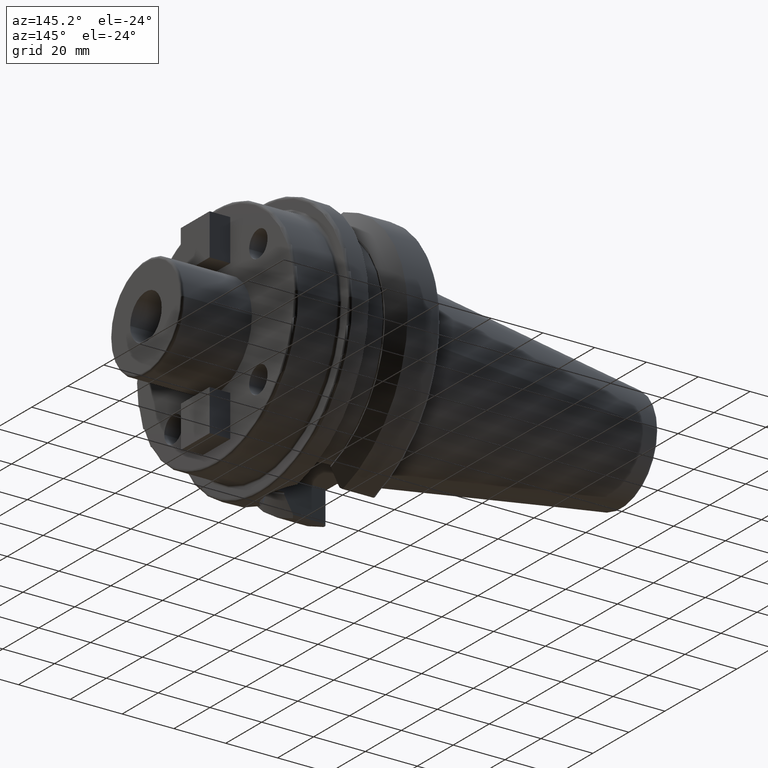
[diagram: clean part render]
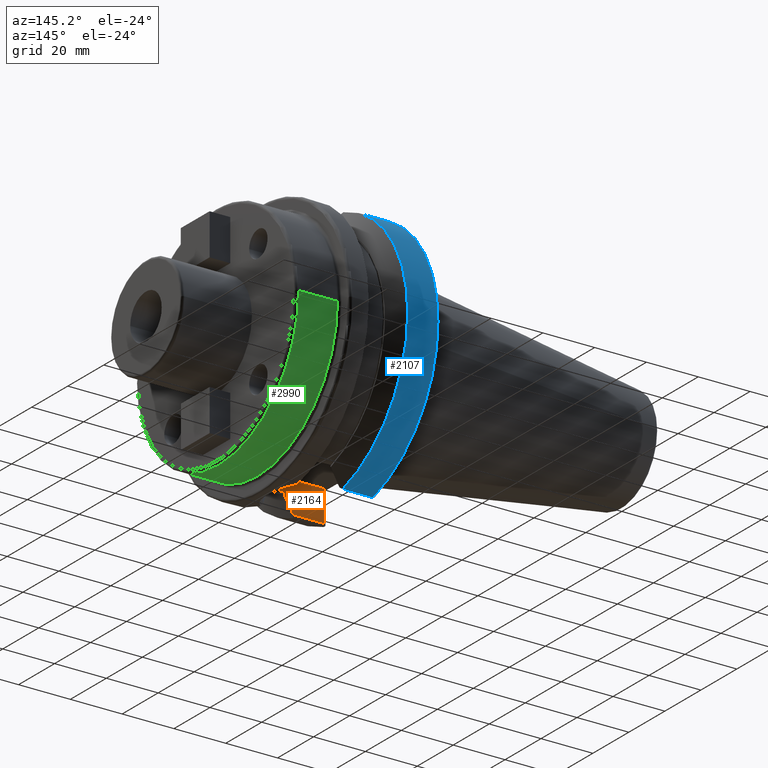
[diagram: same view with three faces highlighted in distinct colors, each labeled with its STEP entity id]
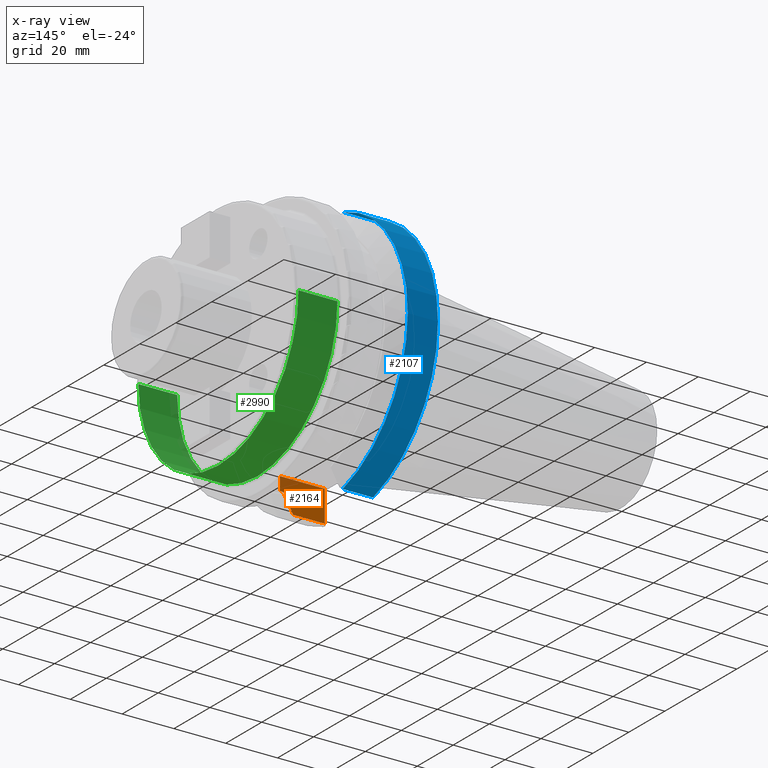
[diagram: x-ray of the same camera — body ghosted, the three highlighted faces saturated]
A machine part, auxiliary view with three faces highlighted in distinct colors.
The next image is the same camera in x-ray (body ghosted, the three faces saturated) — at least one of them is partly hidden behind the body in this view.
Their STEP definitions:

[orange] entity #2164 — the highlighted planar face has unit normal (0, -1, 0).
#295=DIRECTION('',(0.E0,0.E0,-1.E0));
#296=VECTOR('',#295,4.678451531613E-1);
#297=CARTESIAN_POINT('',(1.96625E1,-1.29025E1,-4.062531376802E1));
#298=LINE('',#297,#296);
#299=CARTESIAN_POINT('',(1.99125E1,-1.29025E1,-4.036293000700E1));
#300=CARTESIAN_POINT('',(1.988482223968E1,-1.29025E1,-4.036293000700E1));
#301=CARTESIAN_POINT('',(1.983275140013E1,-1.29025E1,-4.037231907874E1));
#302=CARTESIAN_POINT('',(1.976358989115E1,-1.29025E1,-4.040921074747E1));
#303=CARTESIAN_POINT('',(1.970597803203E1,-1.29025E1,-4.046933362101E1));
#304=CARTESIAN_POINT('',(1.967010312706E1,-1.29025E1,-4.054571527488E1));
#305=CARTESIAN_POINT('',(1.96625E1,-1.29025E1,-4.059802443585E1));
#306=CARTESIAN_POINT('',(1.96625E1,-1.29025E1,-4.062531376802E1));
#308=DIRECTION('',(1.E0,0.E0,0.E0));
#309=VECTOR('',#308,1.435E0);
#310=CARTESIAN_POINT('',(1.99125E1,-1.29025E1,-4.036293000700E1));
#311=LINE('',#310,#309);
#312=DIRECTION('',(-5.129281470936E-7,5.122293284830E-7,-9.999999999997E-1));
#313=VECTOR('',#312,1.177331056675E1);
#314=CARTESIAN_POINT('',(4.E0,-1.29025E1,-3.52E1));
#315=LINE('',#314,#313);
#316=CARTESIAN_POINT('',(3.999993961138E0,-1.290249396937E1,-4.697331056674E1));
#317=CARTESIAN_POINT('',(3.981975961438E0,-1.290249396937E1,-4.697876868360E1));
#318=CARTESIAN_POINT('',(3.948689573130E0,-1.290250279942E1,-4.699509717081E1));
#319=CARTESIAN_POINT('',(3.903730030628E0,-1.290249924798E1,-4.704031753072E1));
#320=CARTESIAN_POINT('',(3.875687876660E0,-1.290250020864E1,-4.709955792880E1));
#321=CARTESIAN_POINT('',(3.868340134922E0,-1.290249991745E1,-4.716386491502E1));
#322=CARTESIAN_POINT('',(3.882132130738E0,-1.290250012158E1,-4.722328575491E1));
#323=CARTESIAN_POINT('',(3.913011146217E0,-1.290249959625E1,-4.726973353600E1));
#324=CARTESIAN_POINT('',(3.955328137349E0,-1.290250149344E1,-4.729813597703E1));
#325=CARTESIAN_POINT('',(3.984570609571E0,-1.290249678449E1,-4.730395410478E1));
#326=CARTESIAN_POINT('',(3.999999988296E0,-1.290249678449E1,-4.730399634611E1));
#328=DIRECTION('',(9.999999999999E-1,-2.631146682253E-7,3.498135127772E-7));
#329=VECTOR('',#328,1.222095964835E1);
#330=CARTESIAN_POINT('',(3.999999988296E0,-1.290249678449E1,-4.730399634611E1));
#331=LINE('',#330,#329);
#332=CARTESIAN_POINT('',(1.96625E1,-1.29025E1,-4.109315892118E1));
#333=CARTESIAN_POINT('',(1.930371923002E1,-1.29025E1,-4.174449707739E1));
#334=CARTESIAN_POINT('',(1.857040869022E1,-1.29025E1,-4.307298282769E1));
#335=CARTESIAN_POINT('',(1.742403081668E1,-1.29025E1,-4.514175024416E1));
#336=CARTESIAN_POINT('',(1.662730270625E1,-1.29025E1,-4.657447448688E1));
#337=CARTESIAN_POINT('',(1.622095963665E1,-1.29025E1,-4.730399207105E1));
#435=DIRECTION('',(0.E0,0.E0,-1.E0));
#436=VECTOR('',#435,5.162930007E0);
#437=CARTESIAN_POINT('',(2.13475E1,-1.29025E1,-3.52E1));
#438=LINE('',#437,#436);
#749=DIRECTION('',(1.E0,0.E0,0.E0));
#750=VECTOR('',#749,1.73475E1);
#751=CARTESIAN_POINT('',(4.E0,-1.29025E1,-3.52E1));
#752=LINE('',#751,#750);
#1454=CARTESIAN_POINT('',(1.96625E1,-1.29025E1,-4.062531376802E1));
#1456=VERTEX_POINT('',#1454);
#1462=CARTESIAN_POINT('',(1.99125E1,-1.29025E1,-4.036293000700E1));
#1464=VERTEX_POINT('',#1462);
#1499=CARTESIAN_POINT('',(1.96625E1,-1.29025E1,-4.109315892118E1));
#1501=VERTEX_POINT('',#1499);
#1592=CARTESIAN_POINT('',(2.13475E1,-1.29025E1,-3.52E1));
#1594=VERTEX_POINT('',#1592);
#1611=CARTESIAN_POINT('',(2.13475E1,-1.29025E1,-4.036293000700E1));
#1612=VERTEX_POINT('',#1611);
#1613=VERTEX_POINT('',#337);
#1657=CARTESIAN_POINT('',(4.E0,-1.29025E1,-3.52E1));
#1658=CARTESIAN_POINT('',(3.999993961138E0,-1.290249396937E1,
-4.697331056674E1));
#1659=VERTEX_POINT('',#1657);
#1660=VERTEX_POINT('',#1658);
#1663=CARTESIAN_POINT('',(3.999999988296E0,-1.290249678449E1,
-4.730399634611E1));
#1664=VERTEX_POINT('',#1663);
#2142=CARTESIAN_POINT('',(2.5E0,-1.29025E1,-3.52E1));
#2143=DIRECTION('',(0.E0,-1.E0,0.E0));
#2144=DIRECTION('',(1.E0,0.E0,0.E0));
#2145=AXIS2_PLACEMENT_3D('',#2142,#2143,#2144);
#2146=PLANE('',#2145);
#2147=ORIENTED_EDGE('',*,*,#2036,.F.);
#2149=ORIENTED_EDGE('',*,*,#2148,.F.);
#2151=ORIENTED_EDGE('',*,*,#2150,.T.);
#2153=ORIENTED_EDGE('',*,*,#2152,.F.);
#2155=ORIENTED_EDGE('',*,*,#2154,.F.);
#2157=ORIENTED_EDGE('',*,*,#2156,.T.);
#2159=ORIENTED_EDGE('',*,*,#2158,.T.);
#2160=ORIENTED_EDGE('',*,*,#2134,.T.);
#2161=ORIENTED_EDGE('',*,*,#2065,.F.);
#2162=EDGE_LOOP('',(#2147,#2149,#2151,#2153,#2155,#2157,#2159,#2160,#2161));
#2163=FACE_OUTER_BOUND('',#2162,.F.);
#2164=ADVANCED_FACE('',(#2163),#2146,.F.);
#307=B_SPLINE_CURVE_WITH_KNOTS('',3,(#299,#300,#301,#302,#303,#304,#305,#306),
.UNSPECIFIED.,.F.,.F.,(4,1,1,1,1,4),(0.E0,2.E-1,4.E-1,6.E-1,8.E-1,1.E0),
.UNSPECIFIED.);
#327=B_SPLINE_CURVE_WITH_KNOTS('',3,(#316,#317,#318,#319,#320,#321,#322,#323,
#324,#325,#326),.UNSPECIFIED.,.F.,.F.,(4,1,1,1,1,1,1,1,4),(0.E0,1.25E-1,2.5E-1,
3.75E-1,5.E-1,6.25E-1,7.5E-1,8.75E-1,1.E0),.UNSPECIFIED.);
#338=B_SPLINE_CURVE_WITH_KNOTS('',3,(#332,#333,#334,#335,#336,#337),
.UNSPECIFIED.,.F.,.F.,(4,1,1,4),(0.E0,3.333333333333E-1,6.666666666667E-1,1.E0),
.UNSPECIFIED.);
#2036=EDGE_CURVE('',#1456,#1501,#298,.T.);
#2065=EDGE_CURVE('',#1501,#1613,#338,.T.);
#2134=EDGE_CURVE('',#1664,#1613,#331,.T.);
#2148=EDGE_CURVE('',#1464,#1456,#307,.T.);
#2150=EDGE_CURVE('',#1464,#1612,#311,.T.);
#2152=EDGE_CURVE('',#1594,#1612,#438,.T.);
#2154=EDGE_CURVE('',#1659,#1594,#752,.T.);
#2156=EDGE_CURVE('',#1659,#1660,#315,.T.);
#2158=EDGE_CURVE('',#1660,#1664,#327,.T.);

[blue] entity #2107 — the highlighted cylindrical surface (partial cylindrical patch) has radius 49.9875 mm, axis along (1, 0, 0).
#227=CARTESIAN_POINT('',(4.E0,0.E0,0.E0));
#228=DIRECTION('',(-1.E0,0.E0,0.E0));
#229=DIRECTION('',(0.E0,2.837968869610E-1,9.588844179312E-1));
#230=AXIS2_PLACEMENT_3D('',#227,#228,#229);
#232=DIRECTION('',(-1.E0,-7.302338022926E-8,-9.708531933347E-8));
#233=VECTOR('',#232,1.166933176412E1);
#234=CARTESIAN_POINT('',(1.566933176383E1,1.386327333875E1,-4.802665727057E1));
#235=LINE('',#234,#233);
#236=CARTESIAN_POINT('',(1.566933176383E1,0.E0,0.E0));
#237=DIRECTION('',(1.E0,0.E0,0.E0));
#238=DIRECTION('',(0.E0,2.773348004750E-1,-9.607733387462E-1));
#239=AXIS2_PLACEMENT_3D('',#236,#237,#238);
#241=DIRECTION('',(9.999999999989E-1,8.887251737038E-7,-1.189757232592E-6));
#242=VECTOR('',#241,1.166933177277E1);
#243=CARTESIAN_POINT('',(3.999999991073E0,1.418628651613E1,4.793224872501E1));
#244=LINE('',#243,#242);
#571=CARTESIAN_POINT('',(3.999999999701E0,1.386327248661E1,-4.802665840350E1));
#1620=CARTESIAN_POINT('',(1.566933176383E1,1.386327333875E1,-4.802665727057E1));
#1621=CARTESIAN_POINT('',(1.566933176383E1,1.418629688696E1,4.793223484134E1));
#1622=VERTEX_POINT('',#1620);
#1623=VERTEX_POINT('',#1621);
#1635=CARTESIAN_POINT('',(4.E0,1.418631682991E1,4.793222893890E1));
#1637=VERTEX_POINT('',#1635);
#1652=VERTEX_POINT('',#571);
#2093=CARTESIAN_POINT('',(-1.0879E2,0.E0,0.E0));
#2094=DIRECTION('',(1.E0,0.E0,0.E0));
#2095=DIRECTION('',(0.E0,-1.E0,0.E0));
#2096=AXIS2_PLACEMENT_3D('',#2093,#2094,#2095);
#2097=CYLINDRICAL_SURFACE('',#2096,4.99875E1);
#2099=ORIENTED_EDGE('',*,*,#2098,.T.);
#2101=ORIENTED_EDGE('',*,*,#2100,.F.);
#2102=ORIENTED_EDGE('',*,*,#2046,.T.);
#2104=ORIENTED_EDGE('',*,*,#2103,.F.);
#2105=EDGE_LOOP('',(#2099,#2101,#2102,#2104));
#2106=FACE_OUTER_BOUND('',#2105,.F.);
#2107=ADVANCED_FACE('',(#2106),#2097,.T.);
#231=CIRCLE('',#230,4.99875E1);
#240=CIRCLE('',#239,4.99875E1);
#2046=EDGE_CURVE('',#1622,#1623,#240,.T.);
#2098=EDGE_CURVE('',#1637,#1652,#231,.T.);
#2100=EDGE_CURVE('',#1622,#1652,#235,.T.);
#2103=EDGE_CURVE('',#1637,#1623,#244,.T.);

[green] entity #2990 — the highlighted cylindrical surface (partial cylindrical patch) has radius 44.5 mm, axis along (1, 0, 0).
#874=CARTESIAN_POINT('',(5.4E1,0.E0,0.E0));
#875=DIRECTION('',(-1.E0,0.E0,0.E0));
#876=DIRECTION('',(0.E0,1.E0,0.E0));
#877=AXIS2_PLACEMENT_3D('',#874,#875,#876);
#879=DIRECTION('',(-1.E0,0.E0,2.072411686704E-13));
#880=VECTOR('',#879,1.5E1);
#881=CARTESIAN_POINT('',(5.4E1,4.45E1,-5.454755348562E-13));
#882=LINE('',#881,#880);
#883=CARTESIAN_POINT('',(3.9E1,0.E0,0.E0));
#884=DIRECTION('',(1.E0,0.E0,0.E0));
#885=DIRECTION('',(0.E0,-1.E0,0.E0));
#886=AXIS2_PLACEMENT_3D('',#883,#884,#885);
#888=DIRECTION('',(-1.E0,0.E0,-2.072249151015E-13));
#889=VECTOR('',#888,1.5E1);
#890=CARTESIAN_POINT('',(5.4E1,-4.45E1,5.440636007869E-13));
#891=LINE('',#890,#889);
#1719=CARTESIAN_POINT('',(3.9E1,-4.45E1,-1.089935651241E-14));
#1720=CARTESIAN_POINT('',(3.9E1,4.45E1,0.E0));
#1721=VERTEX_POINT('',#1719);
#1722=VERTEX_POINT('',#1720);
#1723=CARTESIAN_POINT('',(5.4E1,4.45E1,0.E0));
#1724=CARTESIAN_POINT('',(5.4E1,-4.45E1,-1.089935651241E-14));
#1725=VERTEX_POINT('',#1723);
#1726=VERTEX_POINT('',#1724);
#2979=CARTESIAN_POINT('',(3.58E1,0.E0,0.E0));
#2980=DIRECTION('',(1.E0,0.E0,0.E0));
#2981=DIRECTION('',(0.E0,-1.E0,0.E0));
#2982=AXIS2_PLACEMENT_3D('',#2979,#2980,#2981);
#2983=CYLINDRICAL_SURFACE('',#2982,4.45E1);
#2984=ORIENTED_EDGE('',*,*,#2970,.F.);
#2985=ORIENTED_EDGE('',*,*,#2945,.T.);
#2986=ORIENTED_EDGE('',*,*,#2915,.F.);
#2987=ORIENTED_EDGE('',*,*,#2942,.F.);
#2988=EDGE_LOOP('',(#2984,#2985,#2986,#2987));
#2989=FACE_OUTER_BOUND('',#2988,.F.);
#2990=ADVANCED_FACE('',(#2989),#2983,.T.);
#878=CIRCLE('',#877,4.45E1);
#887=CIRCLE('',#886,4.45E1);
#2915=EDGE_CURVE('',#1721,#1722,#887,.T.);
#2942=EDGE_CURVE('',#1726,#1721,#891,.T.);
#2945=EDGE_CURVE('',#1725,#1722,#882,.T.);
#2970=EDGE_CURVE('',#1725,#1726,#878,.T.);